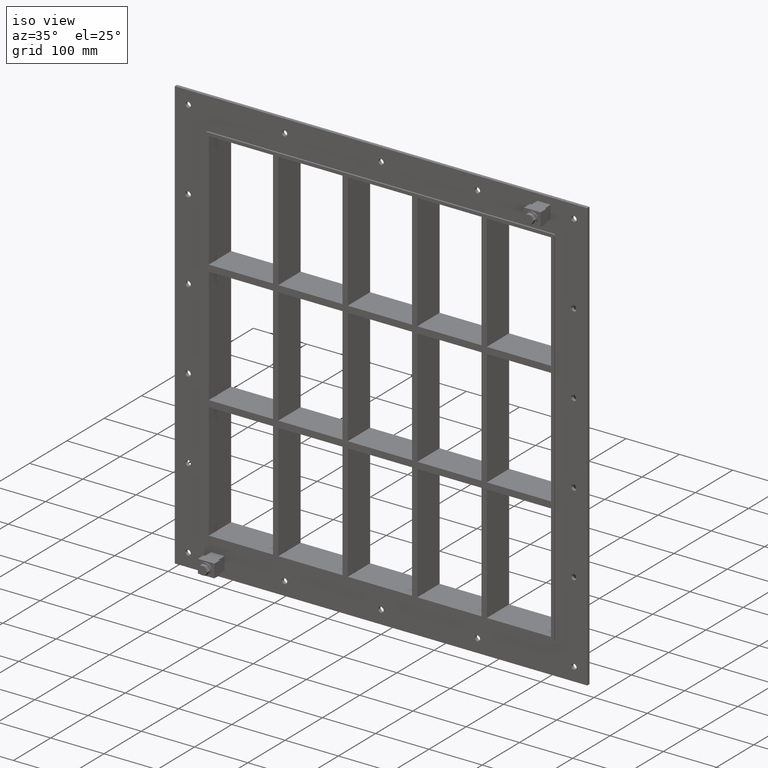
[diagram: clean part render]
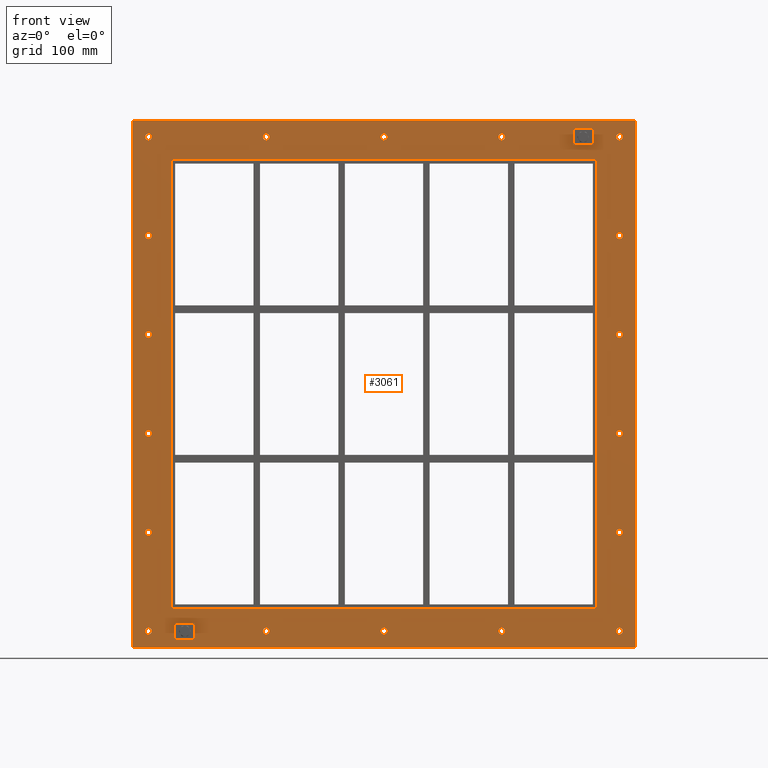
[diagram: tour spotlight — one face highlighted and labeled with its STEP entity id]
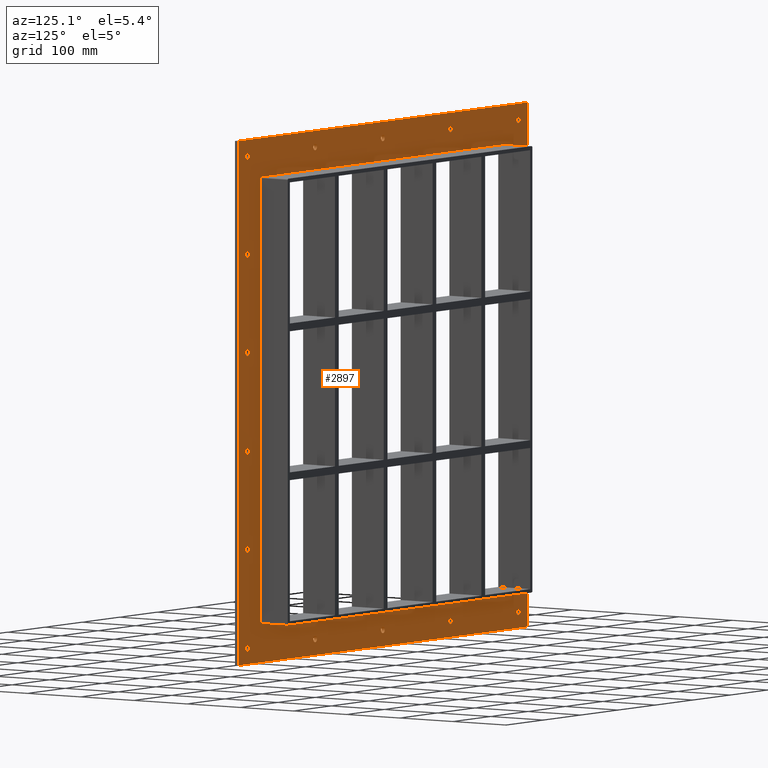
[diagram: tour spotlight — one face highlighted and labeled with its STEP entity id]
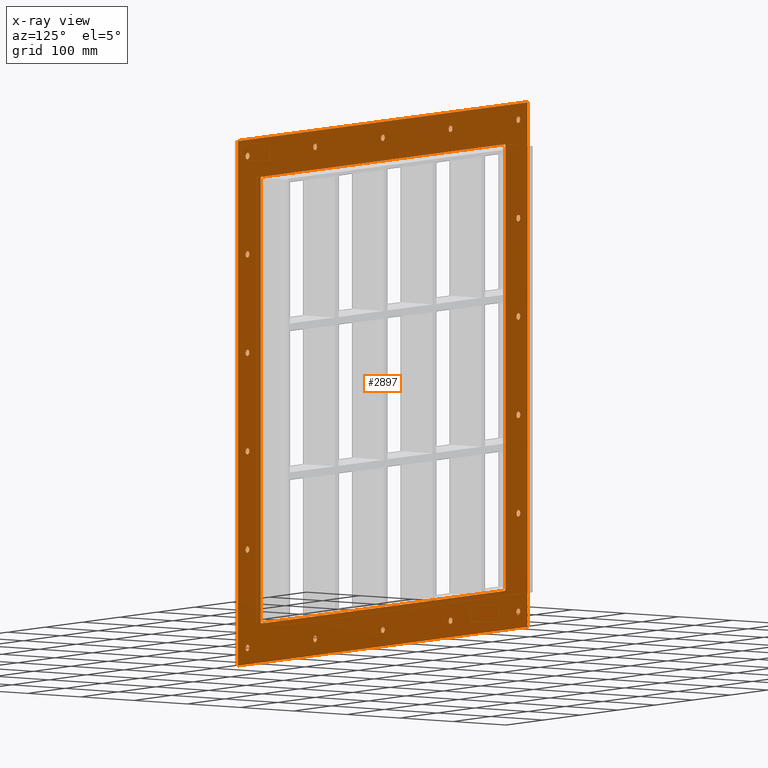
[diagram: x-ray of the same camera — body ghosted, this tour face saturated]
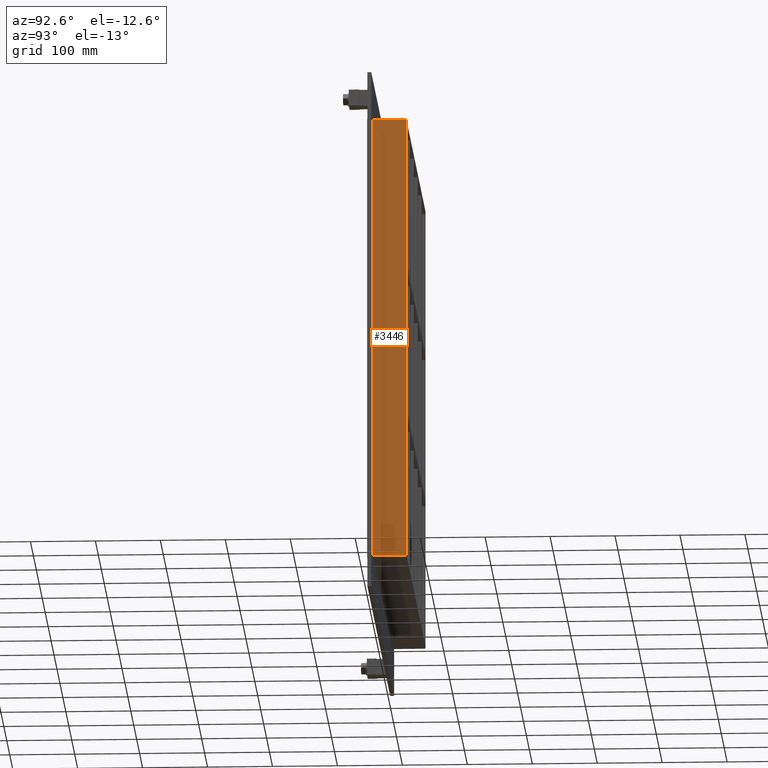
[diagram: tour spotlight — one face highlighted and labeled with its STEP entity id]
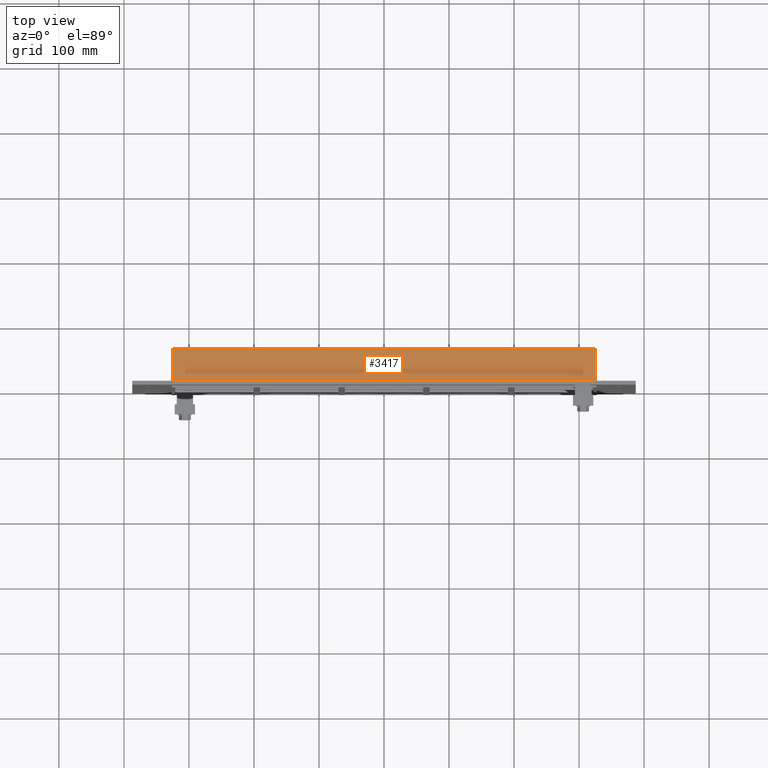
[diagram: tour spotlight — one face highlighted and labeled with its STEP entity id]
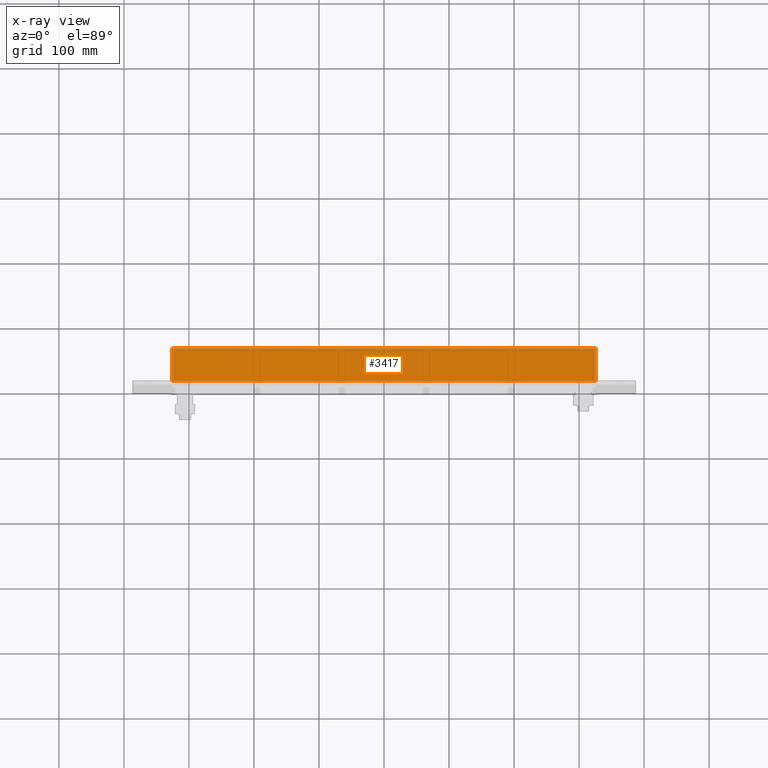
[diagram: x-ray of the same camera — body ghosted, this tour face saturated]
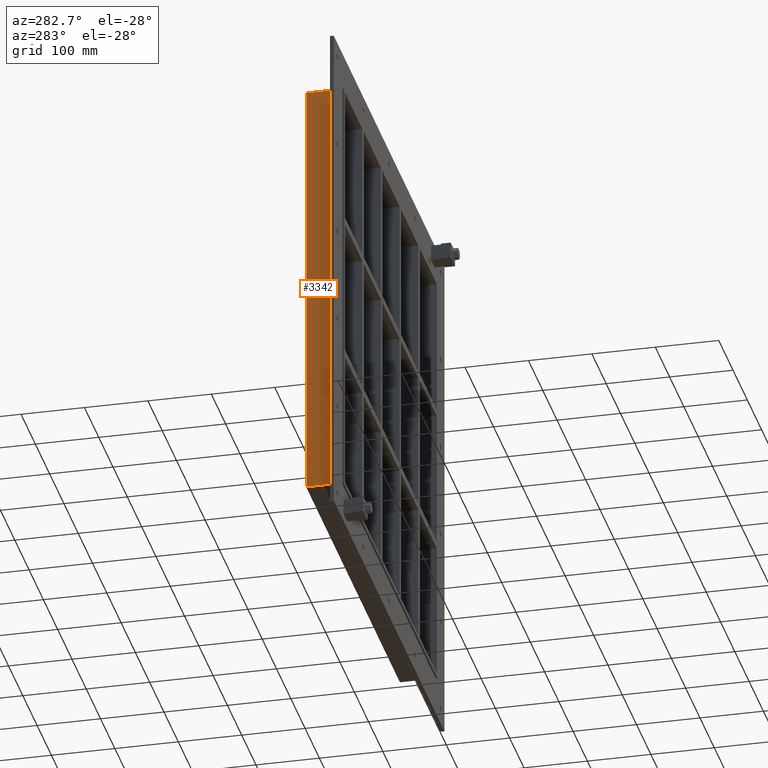
[diagram: tour spotlight — one face highlighted and labeled with its STEP entity id]
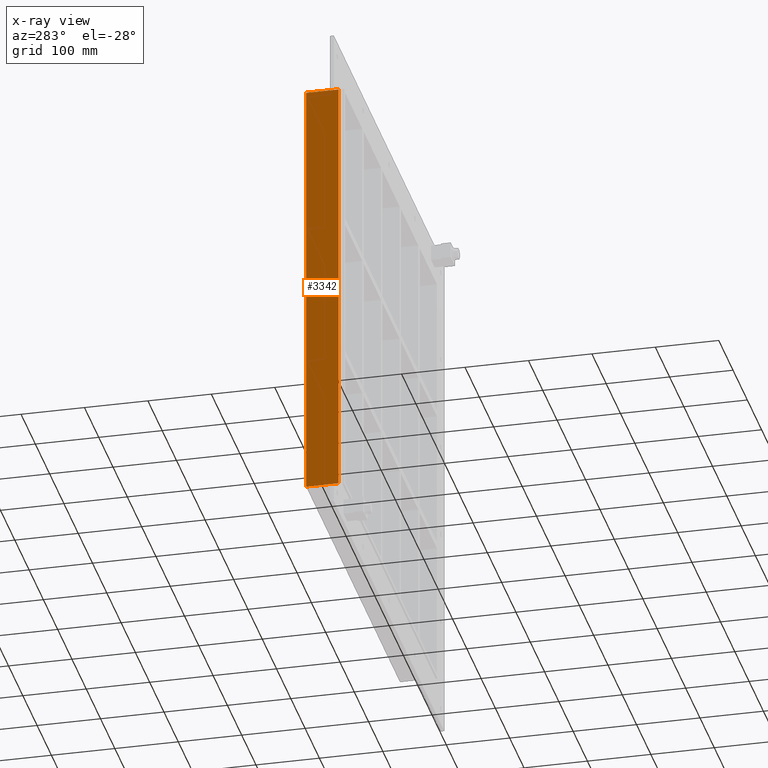
[diagram: x-ray of the same camera — body ghosted, this tour face saturated]
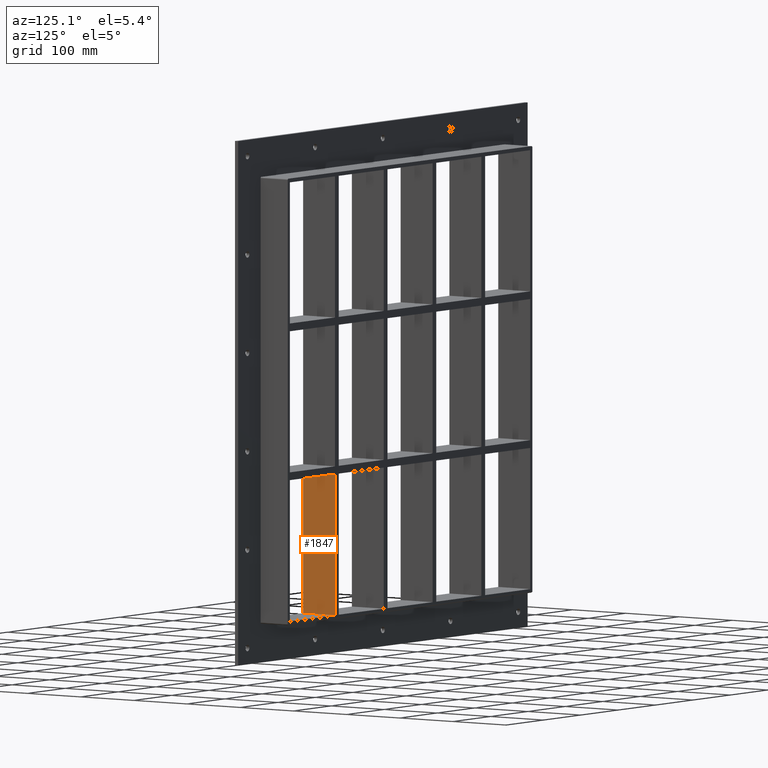
[diagram: tour spotlight — one face highlighted and labeled with its STEP entity id]
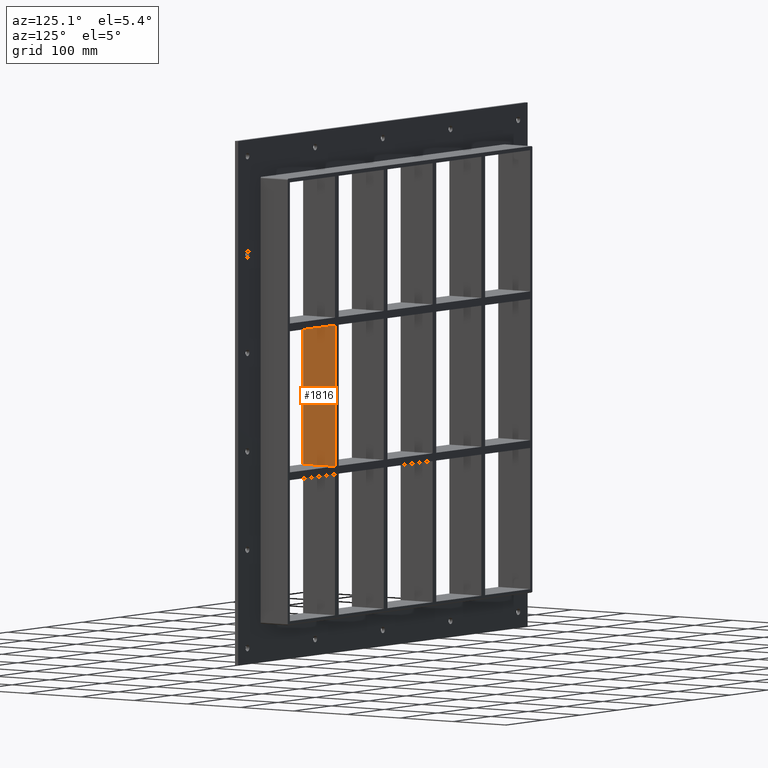
[diagram: tour spotlight — one face highlighted and labeled with its STEP entity id]
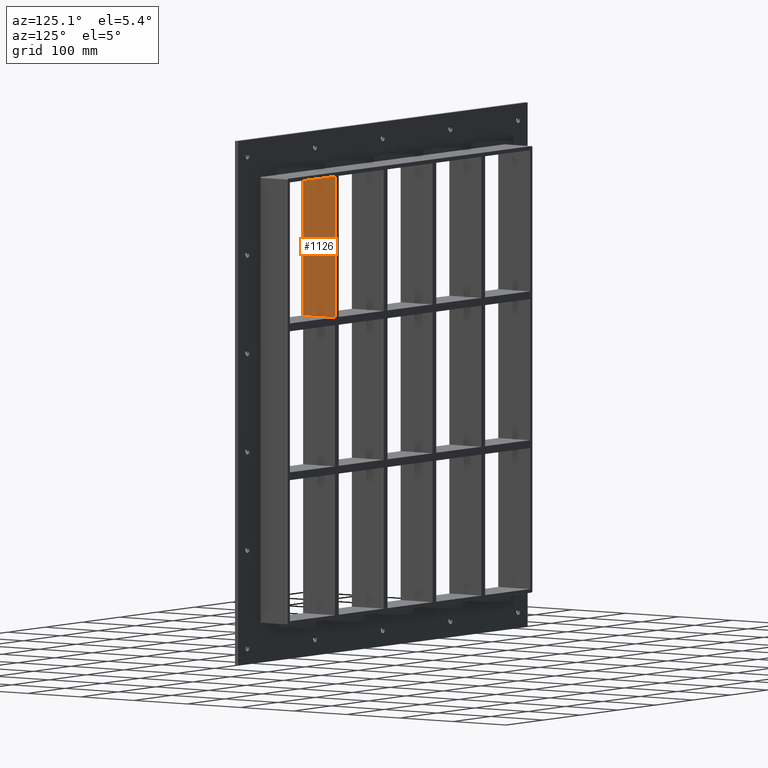
[diagram: tour spotlight — one face highlighted and labeled with its STEP entity id]
A machine part: a face-by-face anatomy tour. The part has 181 B-rep faces; the first image is the clean iso view, then the 8 largest visible faces are spotlighted one at a time (largest first), each with its STEP entity span.

Face 1 — front view, entity #3061. In plain terms, the highlighted planar face has unit normal (0, 1, 0).
Definition (entity closure, byte-faithful):
#84=CARTESIAN_POINT('',(-357.25000000000011,0.0,-380.00000000000011));
#85=VERTEX_POINT('',#84);
#86=CARTESIAN_POINT('',(-362.25000000000011,0.0,-380.00000000000011));
#87=DIRECTION('',(0.0,1.0,0.0));
#88=DIRECTION('',(1.0,0.0,0.0));
#89=AXIS2_PLACEMENT_3D('',#86,#87,#88);
#90=CIRCLE('',#89,5.0);
#91=EDGE_CURVE('',#85,#85,#90,.T.);
#112=CARTESIAN_POINT('',(367.14999999999986,0.0,-228.00000000000017));
#113=VERTEX_POINT('',#112);
#114=CARTESIAN_POINT('',(362.14999999999986,0.0,-228.00000000000017));
#115=DIRECTION('',(0.0,1.0,0.0));
#116=DIRECTION('',(1.0,0.0,0.0));
#117=AXIS2_PLACEMENT_3D('',#114,#115,#116);
#118=CIRCLE('',#117,5.0);
#119=EDGE_CURVE('',#113,#113,#118,.T.);
#140=CARTESIAN_POINT('',(-357.25000000000011,0.0,-228.00000000000017));
#141=VERTEX_POINT('',#140);
#142=CARTESIAN_POINT('',(-362.25000000000011,0.0,-228.00000000000017));
#143=DIRECTION('',(0.0,1.0,0.0));
#144=DIRECTION('',(1.0,0.0,0.0));
#145=AXIS2_PLACEMENT_3D('',#142,#143,#144);
#146=CIRCLE('',#145,5.0);
#147=EDGE_CURVE('',#141,#141,#146,.T.);
#168=CARTESIAN_POINT('',(367.14999999999986,0.0,-76.000000000000142));
#169=VERTEX_POINT('',#168);
#170=CARTESIAN_POINT('',(362.14999999999986,0.0,-76.000000000000142));
#171=DIRECTION('',(0.0,1.0,0.0));
#172=DIRECTION('',(1.0,0.0,0.0));
#173=AXIS2_PLACEMENT_3D('',#170,#171,#172);
#174=CIRCLE('',#173,5.0);
#175=EDGE_CURVE('',#169,#169,#174,.T.);
#196=CARTESIAN_POINT('',(-357.25000000000011,0.0,-76.000000000000142));
#197=VERTEX_POINT('',#196);
#198=CARTESIAN_POINT('',(-362.25000000000011,0.0,-76.000000000000142));
#199=DIRECTION('',(0.0,1.0,0.0));
#200=DIRECTION('',(1.0,0.0,0.0));
#201=AXIS2_PLACEMENT_3D('',#198,#199,#200);
#202=CIRCLE('',#201,5.0);
#203=EDGE_CURVE('',#197,#197,#202,.T.);
#224=CARTESIAN_POINT('',(367.14999999999986,0.0,75.999999999999815));
#225=VERTEX_POINT('',#224);
#226=CARTESIAN_POINT('',(362.14999999999986,0.0,75.999999999999815));
#227=DIRECTION('',(0.0,1.0,0.0));
#228=DIRECTION('',(1.0,0.0,0.0));
#229=AXIS2_PLACEMENT_3D('',#226,#227,#228);
#230=CIRCLE('',#229,5.0);
#231=EDGE_CURVE('',#225,#225,#230,.T.);
#252=CARTESIAN_POINT('',(-357.25000000000011,0.0,75.999999999999815));
#253=VERTEX_POINT('',#252);
#254=CARTESIAN_POINT('',(-362.25000000000011,0.0,75.999999999999815));
#255=DIRECTION('',(0.0,1.0,0.0));
#256=DIRECTION('',(1.0,0.0,0.0));
#257=AXIS2_PLACEMENT_3D('',#254,#255,#256);
#258=CIRCLE('',#257,5.0);
#259=EDGE_CURVE('',#253,#253,#258,.T.);
#280=CARTESIAN_POINT('',(367.14999999999986,0.0,227.99999999999983));
#281=VERTEX_POINT('',#280);
#282=CARTESIAN_POINT('',(362.14999999999986,0.0,227.99999999999983));
#283=DIRECTION('',(0.0,1.0,0.0));
#284=DIRECTION('',(1.0,0.0,0.0));
#285=AXIS2_PLACEMENT_3D('',#282,#283,#284);
#286=CIRCLE('',#285,5.0);
#287=EDGE_CURVE('',#281,#281,#286,.T.);
#308=CARTESIAN_POINT('',(-357.25000000000011,0.0,227.99999999999983));
#309=VERTEX_POINT('',#308);
#310=CARTESIAN_POINT('',(-362.25000000000011,0.0,227.99999999999983));
#311=DIRECTION('',(0.0,1.0,0.0));
#312=DIRECTION('',(1.0,0.0,0.0));
#313=AXIS2_PLACEMENT_3D('',#310,#311,#312);
#314=CIRCLE('',#313,5.0);
#315=EDGE_CURVE('',#309,#309,#314,.T.);
#336=CARTESIAN_POINT('',(-176.15000000000009,0.0,379.99999999999989));
#337=VERTEX_POINT('',#336);
#338=CARTESIAN_POINT('',(-181.15000000000009,0.0,379.99999999999989));
#339=DIRECTION('',(0.0,1.0,0.0));
#340=DIRECTION('',(1.0,0.0,0.0));
#341=AXIS2_PLACEMENT_3D('',#338,#339,#340);
#342=CIRCLE('',#341,5.0);
#343=EDGE_CURVE('',#337,#337,#342,.T.);
#364=CARTESIAN_POINT('',(-176.15000000000009,0.0,-380.00000000000011));
#365=VERTEX_POINT('',#364);
#366=CARTESIAN_POINT('',(-181.15000000000009,0.0,-380.00000000000011));
#367=DIRECTION('',(0.0,1.0,0.0));
#368=DIRECTION('',(1.0,0.0,0.0));
#369=AXIS2_PLACEMENT_3D('',#366,#367,#368);
#370=CIRCLE('',#369,5.0);
#371=EDGE_CURVE('',#365,#365,#370,.T.);
#392=CARTESIAN_POINT('',(4.949999999999903,0.0,379.99999999999989));
#393=VERTEX_POINT('',#392);
#394=CARTESIAN_POINT('',(-0.050000000000097,0.0,379.99999999999989));
#395=DIRECTION('',(0.0,1.0,0.0));
#396=DIRECTION('',(1.0,0.0,0.0));
#397=AXIS2_PLACEMENT_3D('',#394,#395,#396);
#398=CIRCLE('',#397,5.0);
#399=EDGE_CURVE('',#393,#393,#398,.T.);
#420=CARTESIAN_POINT('',(4.949999999999903,0.0,-380.00000000000011));
#421=VERTEX_POINT('',#420);
#422=CARTESIAN_POINT('',(-0.050000000000097,0.0,-380.00000000000011));
#423=DIRECTION('',(0.0,1.0,0.0));
#424=DIRECTION('',(1.0,0.0,0.0));
#425=AXIS2_PLACEMENT_3D('',#422,#423,#424);
#426=CIRCLE('',#425,5.0);
#427=EDGE_CURVE('',#421,#421,#426,.T.);
#448=CARTESIAN_POINT('',(186.0499999999999,0.0,379.99999999999989));
#449=VERTEX_POINT('',#448);
#450=CARTESIAN_POINT('',(181.0499999999999,0.0,379.99999999999989));
#451=DIRECTION('',(0.0,1.0,0.0));
#452=DIRECTION('',(1.0,0.0,0.0));
#453=AXIS2_PLACEMENT_3D('',#450,#451,#452);
#454=CIRCLE('',#453,5.0);
#455=EDGE_CURVE('',#449,#449,#454,.T.);
#476=CARTESIAN_POINT('',(186.0499999999999,0.0,-380.00000000000011));
#477=VERTEX_POINT('',#476);
#478=CARTESIAN_POINT('',(181.0499999999999,0.0,-380.00000000000011));
#479=DIRECTION('',(0.0,1.0,0.0));
#480=DIRECTION('',(1.0,0.0,0.0));
#481=AXIS2_PLACEMENT_3D('',#478,#479,#480);
#482=CIRCLE('',#481,5.0);
#483=EDGE_CURVE('',#477,#477,#482,.T.);
#504=CARTESIAN_POINT('',(367.14999999999986,0.0,-380.00000000000011));
#505=VERTEX_POINT('',#504);
#506=CARTESIAN_POINT('',(362.14999999999986,0.0,-380.00000000000011));
#507=DIRECTION('',(0.0,1.0,0.0));
#508=DIRECTION('',(1.0,0.0,0.0));
#509=AXIS2_PLACEMENT_3D('',#506,#507,#508);
#510=CIRCLE('',#509,5.0);
#511=EDGE_CURVE('',#505,#505,#510,.T.);
#532=CARTESIAN_POINT('',(-357.25000000000011,0.0,379.99999999999989));
#533=VERTEX_POINT('',#532);
#534=CARTESIAN_POINT('',(-362.25000000000011,0.0,379.99999999999989));
#535=DIRECTION('',(0.0,1.0,0.0));
#536=DIRECTION('',(1.0,0.0,0.0));
#537=AXIS2_PLACEMENT_3D('',#534,#535,#536);
#538=CIRCLE('',#537,5.0);
#539=EDGE_CURVE('',#533,#533,#538,.T.);
#560=CARTESIAN_POINT('',(367.14999999999986,0.0,379.99999999999989));
#561=VERTEX_POINT('',#560);
#562=CARTESIAN_POINT('',(362.14999999999986,0.0,379.99999999999989));
#563=DIRECTION('',(0.0,1.0,0.0));
#564=DIRECTION('',(1.0,0.0,0.0));
#565=AXIS2_PLACEMENT_3D('',#562,#563,#564);
#566=CIRCLE('',#565,5.0);
#567=EDGE_CURVE('',#561,#561,#566,.T.);
#2898=CARTESIAN_POINT('',(0.0,0.0,0.0));
#2899=DIRECTION('',(0.0,1.0,0.0));
#2900=DIRECTION('',(0.0,0.0,1.0));
#2901=AXIS2_PLACEMENT_3D('',#2898,#2899,#2900);
#2902=PLANE('',#2901);
#2903=CARTESIAN_POINT('',(-387.25,0.0,405.00000000000006));
#2904=VERTEX_POINT('',#2903);
#2905=CARTESIAN_POINT('',(387.25,0.0,405.00000000000006));
#2906=VERTEX_POINT('',#2905);
#2907=CARTESIAN_POINT('',(-387.25,0.0,405.00000000000006));
#2908=DIRECTION('',(1.0,0.0,0.0));
#2909=VECTOR('',#2908,774.5);
#2910=LINE('',#2907,#2909);
#2911=EDGE_CURVE('',#2904,#2906,#2910,.T.);
#2912=ORIENTED_EDGE('',*,*,#2911,.F.);
#2913=CARTESIAN_POINT('',(-387.25,0.0,-405.00000000000006));
#2914=VERTEX_POINT('',#2913);
#2915=CARTESIAN_POINT('',(-387.25,0.0,-405.00000000000006));
#2916=DIRECTION('',(0.0,0.0,1.0));
#2917=VECTOR('',#2916,810.00000000000011);
#2918=LINE('',#2915,#2917);
#2919=EDGE_CURVE('',#2914,#2904,#2918,.T.);
#2920=ORIENTED_EDGE('',*,*,#2919,.F.);
#2921=CARTESIAN_POINT('',(387.25,0.0,-405.00000000000006));
#2922=VERTEX_POINT('',#2921);
#2923=CARTESIAN_POINT('',(387.25,0.0,-405.00000000000006));
#2924=DIRECTION('',(-1.0,0.0,0.0));
#2925=VECTOR('',#2924,774.5);
#2926=LINE('',#2923,#2925);
#2927=EDGE_CURVE('',#2922,#2914,#2926,.T.);
#2928=ORIENTED_EDGE('',*,*,#2927,.F.);
#2929=CARTESIAN_POINT('',(387.25,0.0,405.00000000000006));
#2930=DIRECTION('',(0.0,0.0,-1.0));
#2931=VECTOR('',#2930,810.00000000000011);
#2932=LINE('',#2929,#2931);
#2933=EDGE_CURVE('',#2906,#2922,#2932,.T.);
#2934=ORIENTED_EDGE('',*,*,#2933,.F.);
#2935=EDGE_LOOP('',(#2912,#2920,#2928,#2934));
#2936=FACE_OUTER_BOUND('',#2935,.T.);
#2937=ORIENTED_EDGE('',*,*,#91,.T.);
#2938=EDGE_LOOP('',(#2937));
#2939=FACE_BOUND('',#2938,.T.);
#2940=ORIENTED_EDGE('',*,*,#119,.T.);
#2941=EDGE_LOOP('',(#2940));
#2942=FACE_BOUND('',#2941,.T.);
#2943=ORIENTED_EDGE('',*,*,#147,.T.);
#2944=EDGE_LOOP('',(#2943));
#2945=FACE_BOUND('',#2944,.T.);
#2946=ORIENTED_EDGE('',*,*,#175,.T.);
#2947=EDGE_LOOP('',(#2946));
#2948=FACE_BOUND('',#2947,.T.);
#2949=ORIENTED_EDGE('',*,*,#203,.T.);
#2950=EDGE_LOOP('',(#2949));
#2951=FACE_BOUND('',#2950,.T.);
#2952=ORIENTED_EDGE('',*,*,#231,.T.);
#2953=EDGE_LOOP('',(#2952));
#2954=FACE_BOUND('',#2953,.T.);
#2955=ORIENTED_EDGE('',*,*,#259,.T.);
#2956=EDGE_LOOP('',(#2955));
#2957=FACE_BOUND('',#2956,.T.);
#2958=ORIENTED_EDGE('',*,*,#287,.T.);
#2959=EDGE_LOOP('',(#2958));
#2960=FACE_BOUND('',#2959,.T.);
#2961=ORIENTED_EDGE('',*,*,#315,.T.);
#2962=EDGE_LOOP('',(#2961));
#2963=FACE_BOUND('',#2962,.T.);
#2964=ORIENTED_EDGE('',*,*,#343,.T.);
#2965=EDGE_LOOP('',(#2964));
#2966=FACE_BOUND('',#2965,.T.);
#2967=ORIENTED_EDGE('',*,*,#371,.T.);
#2968=EDGE_LOOP('',(#2967));
#2969=FACE_BOUND('',#2968,.T.);
#2970=ORIENTED_EDGE('',*,*,#399,.T.);
#2971=EDGE_LOOP('',(#2970));
#2972=FACE_BOUND('',#2971,.T.);
#2973=ORIENTED_EDGE('',*,*,#427,.T.);
#2974=EDGE_LOOP('',(#2973));
#2975=FACE_BOUND('',#2974,.T.);
#2976=ORIENTED_EDGE('',*,*,#455,.T.);
#2977=EDGE_LOOP('',(#2976));
#2978=FACE_BOUND('',#2977,.T.);
#2979=ORIENTED_EDGE('',*,*,#483,.T.);
#2980=EDGE_LOOP('',(#2979));
#2981=FACE_BOUND('',#2980,.T.);
#2982=ORIENTED_EDGE('',*,*,#511,.T.);
#2983=EDGE_LOOP('',(#2982));
#2984=FACE_BOUND('',#2983,.T.);
#2985=ORIENTED_EDGE('',*,*,#539,.T.);
#2986=EDGE_LOOP('',(#2985));
#2987=FACE_BOUND('',#2986,.T.);
#2988=ORIENTED_EDGE('',*,*,#567,.T.);
#2989=EDGE_LOOP('',(#2988));
#2990=FACE_BOUND('',#2989,.T.);
#2991=CARTESIAN_POINT('',(-325.25,0.0,345.00000000000011));
#2992=VERTEX_POINT('',#2991);
#2993=CARTESIAN_POINT('',(-327.25,0.0,343.00000000000011));
#2994=VERTEX_POINT('',#2993);
#2995=CARTESIAN_POINT('',(-325.25,0.0,343.00000000000011));
#2996=DIRECTION('',(0.0,-1.0,0.0));
#2997=DIRECTION('',(-0.707106781186548,0.0,0.707106781186548));
#2998=AXIS2_PLACEMENT_3D('',#2995,#2996,#2997);
#2999=CIRCLE('',#2998,2.0);
#3000=EDGE_CURVE('',#2992,#2994,#2999,.T.);
#3001=ORIENTED_EDGE('',*,*,#3000,.F.);
#3002=CARTESIAN_POINT('',(325.25,0.0,345.00000000000011));
#3003=VERTEX_POINT('',#3002);
#3004=CARTESIAN_POINT('',(325.25,0.0,345.00000000000011));
#3005=DIRECTION('',(-1.0,0.0,0.0));
#3006=VECTOR('',#3005,650.5);
#3007=LINE('',#3004,#3006);
#3008=EDGE_CURVE('',#3003,#2992,#3007,.T.);
#3009=ORIENTED_EDGE('',*,*,#3008,.F.);
#3010=CARTESIAN_POINT('',(327.25,0.0,343.00000000000011));
#3011=VERTEX_POINT('',#3010);
#3012=CARTESIAN_POINT('',(325.25,0.0,343.00000000000011));
#3013=DIRECTION('',(0.0,-1.0,0.0));
#3014=DIRECTION('',(0.707106781186548,0.0,0.707106781186548));
#3015=AXIS2_PLACEMENT_3D('',#3012,#3013,#3014);
#3016=CIRCLE('',#3015,2.0);
#3017=EDGE_CURVE('',#3011,#3003,#3016,.T.);
#3018=ORIENTED_EDGE('',*,*,#3017,.F.);
#3019=CARTESIAN_POINT('',(327.25,0.0,-343.0));
#3020=VERTEX_POINT('',#3019);
#3021=CARTESIAN_POINT('',(327.25,0.0,-342.99999999999994));
#3022=DIRECTION('',(0.0,0.0,1.0));
#3023=VECTOR('',#3022,686.0);
#3024=LINE('',#3021,#3023);
#3025=EDGE_CURVE('',#3020,#3011,#3024,.T.);
#3026=ORIENTED_EDGE('',*,*,#3025,.F.);
#3027=CARTESIAN_POINT('',(325.25,0.0,-345.0));
#3028=VERTEX_POINT('',#3027);
#3029=CARTESIAN_POINT('',(325.25,0.0,-343.0));
#3030=DIRECTION('',(0.0,-1.0,0.0));
#3031=DIRECTION('',(0.707106781186548,0.0,-0.707106781186548));
#3032=AXIS2_PLACEMENT_3D('',#3029,#3030,#3031);
#3033=CIRCLE('',#3032,2.0);
#3034=EDGE_CURVE('',#3028,#3020,#3033,.T.);
#3035=ORIENTED_EDGE('',*,*,#3034,.F.);
#3036=CARTESIAN_POINT('',(-325.25,0.0,-345.0));
#3037=VERTEX_POINT('',#3036);
#3038=CARTESIAN_POINT('',(-325.25,0.0,-345.0));
#3039=DIRECTION('',(1.0,0.0,0.0));
#3040=VECTOR('',#3039,650.5);
#3041=LINE('',#3038,#3040);
#3042=EDGE_CURVE('',#3037,#3028,#3041,.T.);
#3043=ORIENTED_EDGE('',*,*,#3042,.F.);
#3044=CARTESIAN_POINT('',(-327.25,0.0,-343.0));
#3045=VERTEX_POINT('',#3044);
#3046=CARTESIAN_POINT('',(-325.25,0.0,-343.0));
#3047=DIRECTION('',(0.0,-1.0,0.0));
#3048=DIRECTION('',(-0.707106781186548,0.0,-0.707106781186548));
#3049=AXIS2_PLACEMENT_3D('',#3046,#3047,#3048);
#3050=CIRCLE('',#3049,2.0);
#3051=EDGE_CURVE('',#3045,#3037,#3050,.T.);
#3052=ORIENTED_EDGE('',*,*,#3051,.F.);
#3053=CARTESIAN_POINT('',(-327.25,0.0,343.00000000000011));
#3054=DIRECTION('',(0.0,0.0,-1.0));
#3055=VECTOR('',#3054,686.00000000000011);
#3056=LINE('',#3053,#3055);
#3057=EDGE_CURVE('',#2994,#3045,#3056,.T.);
#3058=ORIENTED_EDGE('',*,*,#3057,.F.);
#3059=EDGE_LOOP('',(#3001,#3009,#3018,#3026,#3035,#3043,#3052,#3058));
#3060=FACE_BOUND('',#3059,.T.);
#3061=ADVANCED_FACE('',(#2936,#2939,#2942,#2945,#2948,#2951,#2954,#2957,#2960,#2963,#2966,#2969,#2972,#2975,#2978,#2981,#2984,#2987,#2990,#3060),#2902,.F.);

Face 2 — auxiliary view, entity #2897. An x-ray twin of the same camera follows (body ghosted, this face saturated) — the face is partly hidden behind the body. In plain terms, the highlighted planar face has unit normal (0, 1, 0).
Definition (entity closure, byte-faithful):
#73=CARTESIAN_POINT('',(-367.25000000000011,5.999999999999943,-380.00000000000011));
#74=VERTEX_POINT('',#73);
#75=CARTESIAN_POINT('',(-362.25000000000011,5.999999999999943,-380.00000000000011));
#76=DIRECTION('',(0.0,-1.0,0.0));
#77=DIRECTION('',(1.0,0.0,0.0));
#78=AXIS2_PLACEMENT_3D('',#75,#76,#77);
#79=CIRCLE('',#78,5.0);
#80=EDGE_CURVE('',#74,#74,#79,.T.);
#101=CARTESIAN_POINT('',(357.14999999999986,5.999999999999943,-228.00000000000017));
#102=VERTEX_POINT('',#101);
#103=CARTESIAN_POINT('',(362.14999999999986,5.999999999999943,-228.00000000000017));
#104=DIRECTION('',(0.0,-1.0,0.0));
#105=DIRECTION('',(1.0,0.0,0.0));
#106=AXIS2_PLACEMENT_3D('',#103,#104,#105);
#107=CIRCLE('',#106,5.0);
#108=EDGE_CURVE('',#102,#102,#107,.T.);
#129=CARTESIAN_POINT('',(-367.25000000000011,5.999999999999943,-228.00000000000017));
#130=VERTEX_POINT('',#129);
#131=CARTESIAN_POINT('',(-362.25000000000011,5.999999999999943,-228.00000000000017));
#132=DIRECTION('',(0.0,-1.0,0.0));
#133=DIRECTION('',(1.0,0.0,0.0));
#134=AXIS2_PLACEMENT_3D('',#131,#132,#133);
#135=CIRCLE('',#134,5.0);
#136=EDGE_CURVE('',#130,#130,#135,.T.);
#157=CARTESIAN_POINT('',(357.14999999999986,5.999999999999943,-76.000000000000142));
#158=VERTEX_POINT('',#157);
#159=CARTESIAN_POINT('',(362.14999999999986,5.999999999999943,-76.000000000000142));
#160=DIRECTION('',(0.0,-1.0,0.0));
#161=DIRECTION('',(1.0,0.0,0.0));
#162=AXIS2_PLACEMENT_3D('',#159,#160,#161);
#163=CIRCLE('',#162,5.0);
#164=EDGE_CURVE('',#158,#158,#163,.T.);
#185=CARTESIAN_POINT('',(-367.25000000000011,5.999999999999943,-76.000000000000142));
#186=VERTEX_POINT('',#185);
#187=CARTESIAN_POINT('',(-362.25000000000011,5.999999999999943,-76.000000000000142));
#188=DIRECTION('',(0.0,-1.0,0.0));
#189=DIRECTION('',(1.0,0.0,0.0));
#190=AXIS2_PLACEMENT_3D('',#187,#188,#189);
#191=CIRCLE('',#190,5.0);
#192=EDGE_CURVE('',#186,#186,#191,.T.);
#213=CARTESIAN_POINT('',(357.14999999999986,5.999999999999943,75.999999999999815));
#214=VERTEX_POINT('',#213);
#215=CARTESIAN_POINT('',(362.14999999999986,5.999999999999943,75.999999999999815));
#216=DIRECTION('',(0.0,-1.0,0.0));
#217=DIRECTION('',(1.0,0.0,0.0));
#218=AXIS2_PLACEMENT_3D('',#215,#216,#217);
#219=CIRCLE('',#218,5.0);
#220=EDGE_CURVE('',#214,#214,#219,.T.);
#241=CARTESIAN_POINT('',(-367.25000000000011,5.999999999999943,75.999999999999815));
#242=VERTEX_POINT('',#241);
#243=CARTESIAN_POINT('',(-362.25000000000011,5.999999999999943,75.999999999999815));
#244=DIRECTION('',(0.0,-1.0,0.0));
#245=DIRECTION('',(1.0,0.0,0.0));
#246=AXIS2_PLACEMENT_3D('',#243,#244,#245);
#247=CIRCLE('',#246,5.0);
#248=EDGE_CURVE('',#242,#242,#247,.T.);
#269=CARTESIAN_POINT('',(357.14999999999986,5.999999999999943,227.99999999999983));
#270=VERTEX_POINT('',#269);
#271=CARTESIAN_POINT('',(362.14999999999986,5.999999999999943,227.99999999999983));
#272=DIRECTION('',(0.0,-1.0,0.0));
#273=DIRECTION('',(1.0,0.0,0.0));
#274=AXIS2_PLACEMENT_3D('',#271,#272,#273);
#275=CIRCLE('',#274,5.0);
#276=EDGE_CURVE('',#270,#270,#275,.T.);
#297=CARTESIAN_POINT('',(-367.25000000000011,5.999999999999943,227.99999999999983));
#298=VERTEX_POINT('',#297);
#299=CARTESIAN_POINT('',(-362.25000000000011,5.999999999999943,227.99999999999983));
#300=DIRECTION('',(0.0,-1.0,0.0));
#301=DIRECTION('',(1.0,0.0,0.0));
#302=AXIS2_PLACEMENT_3D('',#299,#300,#301);
#303=CIRCLE('',#302,5.0);
#304=EDGE_CURVE('',#298,#298,#303,.T.);
#325=CARTESIAN_POINT('',(-186.15000000000009,5.999999999999943,379.99999999999989));
#326=VERTEX_POINT('',#325);
#327=CARTESIAN_POINT('',(-181.15000000000009,5.999999999999943,379.99999999999989));
#328=DIRECTION('',(0.0,-1.0,0.0));
#329=DIRECTION('',(1.0,0.0,0.0));
#330=AXIS2_PLACEMENT_3D('',#327,#328,#329);
#331=CIRCLE('',#330,5.0);
#332=EDGE_CURVE('',#326,#326,#331,.T.);
#353=CARTESIAN_POINT('',(-186.15000000000009,5.999999999999943,-380.00000000000011));
#354=VERTEX_POINT('',#353);
#355=CARTESIAN_POINT('',(-181.15000000000009,5.999999999999943,-380.00000000000011));
#356=DIRECTION('',(0.0,-1.0,0.0));
#357=DIRECTION('',(1.0,0.0,0.0));
#358=AXIS2_PLACEMENT_3D('',#355,#356,#357);
#359=CIRCLE('',#358,5.0);
#360=EDGE_CURVE('',#354,#354,#359,.T.);
#381=CARTESIAN_POINT('',(-5.050000000000097,5.999999999999943,379.99999999999989));
#382=VERTEX_POINT('',#381);
#383=CARTESIAN_POINT('',(-0.050000000000097,5.999999999999943,379.99999999999989));
#384=DIRECTION('',(0.0,-1.0,0.0));
#385=DIRECTION('',(1.0,0.0,0.0));
#386=AXIS2_PLACEMENT_3D('',#383,#384,#385);
#387=CIRCLE('',#386,5.0);
#388=EDGE_CURVE('',#382,#382,#387,.T.);
#409=CARTESIAN_POINT('',(-5.050000000000097,5.999999999999943,-380.00000000000011));
#410=VERTEX_POINT('',#409);
#411=CARTESIAN_POINT('',(-0.050000000000097,5.999999999999943,-380.00000000000011));
#412=DIRECTION('',(0.0,-1.0,0.0));
#413=DIRECTION('',(1.0,0.0,0.0));
#414=AXIS2_PLACEMENT_3D('',#411,#412,#413);
#415=CIRCLE('',#414,5.0);
#416=EDGE_CURVE('',#410,#410,#415,.T.);
#437=CARTESIAN_POINT('',(176.0499999999999,5.999999999999943,379.99999999999989));
#438=VERTEX_POINT('',#437);
#439=CARTESIAN_POINT('',(181.0499999999999,5.999999999999943,379.99999999999989));
#440=DIRECTION('',(0.0,-1.0,0.0));
#441=DIRECTION('',(1.0,0.0,0.0));
#442=AXIS2_PLACEMENT_3D('',#439,#440,#441);
#443=CIRCLE('',#442,5.0);
#444=EDGE_CURVE('',#438,#438,#443,.T.);
#465=CARTESIAN_POINT('',(176.0499999999999,5.999999999999943,-380.00000000000011));
#466=VERTEX_POINT('',#465);
#467=CARTESIAN_POINT('',(181.0499999999999,5.999999999999943,-380.00000000000011));
#468=DIRECTION('',(0.0,-1.0,0.0));
#469=DIRECTION('',(1.0,0.0,0.0));
#470=AXIS2_PLACEMENT_3D('',#467,#468,#469);
#471=CIRCLE('',#470,5.0);
#472=EDGE_CURVE('',#466,#466,#471,.T.);
#493=CARTESIAN_POINT('',(357.14999999999986,5.999999999999943,-380.00000000000011));
#494=VERTEX_POINT('',#493);
#495=CARTESIAN_POINT('',(362.14999999999986,5.999999999999943,-380.00000000000011));
#496=DIRECTION('',(0.0,-1.0,0.0));
#497=DIRECTION('',(1.0,0.0,0.0));
#498=AXIS2_PLACEMENT_3D('',#495,#496,#497);
#499=CIRCLE('',#498,5.0);
#500=EDGE_CURVE('',#494,#494,#499,.T.);
#521=CARTESIAN_POINT('',(-367.25000000000011,5.999999999999943,379.99999999999989));
#522=VERTEX_POINT('',#521);
#523=CARTESIAN_POINT('',(-362.25000000000011,5.999999999999943,379.99999999999989));
#524=DIRECTION('',(0.0,-1.0,0.0));
#525=DIRECTION('',(1.0,0.0,0.0));
#526=AXIS2_PLACEMENT_3D('',#523,#524,#525);
#527=CIRCLE('',#526,5.0);
#528=EDGE_CURVE('',#522,#522,#527,.T.);
#549=CARTESIAN_POINT('',(357.14999999999986,5.999999999999943,379.99999999999989));
#550=VERTEX_POINT('',#549);
#551=CARTESIAN_POINT('',(362.14999999999986,5.999999999999943,379.99999999999989));
#552=DIRECTION('',(0.0,-1.0,0.0));
#553=DIRECTION('',(1.0,0.0,0.0));
#554=AXIS2_PLACEMENT_3D('',#551,#552,#553);
#555=CIRCLE('',#554,5.0);
#556=EDGE_CURVE('',#550,#550,#555,.T.);
#2734=CARTESIAN_POINT('',(0.0,6.000000000000001,0.0));
#2735=DIRECTION('',(0.0,1.0,0.0));
#2736=DIRECTION('',(0.0,0.0,1.0));
#2737=AXIS2_PLACEMENT_3D('',#2734,#2735,#2736);
#2738=PLANE('',#2737);
#2739=CARTESIAN_POINT('',(-387.25,6.000000000000001,405.00000000000006));
#2740=VERTEX_POINT('',#2739);
#2741=CARTESIAN_POINT('',(387.25,6.000000000000001,405.00000000000006));
#2742=VERTEX_POINT('',#2741);
#2743=CARTESIAN_POINT('',(-387.25,6.000000000000001,405.00000000000006));
#2744=DIRECTION('',(1.0,0.0,0.0));
#2745=VECTOR('',#2744,774.5);
#2746=LINE('',#2743,#2745);
#2747=EDGE_CURVE('',#2740,#2742,#2746,.T.);
#2748=ORIENTED_EDGE('',*,*,#2747,.T.);
#2749=CARTESIAN_POINT('',(387.25,6.000000000000001,-405.00000000000006));
#2750=VERTEX_POINT('',#2749);
#2751=CARTESIAN_POINT('',(387.25,6.000000000000001,405.00000000000006));
#2752=DIRECTION('',(0.0,0.0,-1.0));
#2753=VECTOR('',#2752,810.00000000000011);
#2754=LINE('',#2751,#2753);
#2755=EDGE_CURVE('',#2742,#2750,#2754,.T.);
#2756=ORIENTED_EDGE('',*,*,#2755,.T.);
#2757=CARTESIAN_POINT('',(-387.25,6.000000000000001,-405.00000000000006));
#2758=VERTEX_POINT('',#2757);
#2759=CARTESIAN_POINT('',(387.25,6.000000000000001,-405.00000000000006));
#2760=DIRECTION('',(-1.0,0.0,0.0));
#2761=VECTOR('',#2760,774.5);
#2762=LINE('',#2759,#2761);
#2763=EDGE_CURVE('',#2750,#2758,#2762,.T.);
#2764=ORIENTED_EDGE('',*,*,#2763,.T.);
#2765=CARTESIAN_POINT('',(-387.25,6.000000000000001,-405.00000000000006));
#2766=DIRECTION('',(0.0,0.0,1.0));
#2767=VECTOR('',#2766,810.00000000000011);
#2768=LINE('',#2765,#2767);
#2769=EDGE_CURVE('',#2758,#2740,#2768,.T.);
#2770=ORIENTED_EDGE('',*,*,#2769,.T.);
#2771=EDGE_LOOP('',(#2748,#2756,#2764,#2770));
#2772=FACE_OUTER_BOUND('',#2771,.T.);
#2773=ORIENTED_EDGE('',*,*,#80,.T.);
#2774=EDGE_LOOP('',(#2773));
#2775=FACE_BOUND('',#2774,.T.);
#2776=ORIENTED_EDGE('',*,*,#108,.T.);
#2777=EDGE_LOOP('',(#2776));
#2778=FACE_BOUND('',#2777,.T.);
#2779=ORIENTED_EDGE('',*,*,#136,.T.);
#2780=EDGE_LOOP('',(#2779));
#2781=FACE_BOUND('',#2780,.T.);
#2782=ORIENTED_EDGE('',*,*,#164,.T.);
#2783=EDGE_LOOP('',(#2782));
#2784=FACE_BOUND('',#2783,.T.);
#2785=ORIENTED_EDGE('',*,*,#192,.T.);
#2786=EDGE_LOOP('',(#2785));
#2787=FACE_BOUND('',#2786,.T.);
#2788=ORIENTED_EDGE('',*,*,#220,.T.);
#2789=EDGE_LOOP('',(#2788));
#2790=FACE_BOUND('',#2789,.T.);
#2791=ORIENTED_EDGE('',*,*,#248,.T.);
#2792=EDGE_LOOP('',(#2791));
#2793=FACE_BOUND('',#2792,.T.);
#2794=ORIENTED_EDGE('',*,*,#276,.T.);
#2795=EDGE_LOOP('',(#2794));
#2796=FACE_BOUND('',#2795,.T.);
#2797=ORIENTED_EDGE('',*,*,#304,.T.);
#2798=EDGE_LOOP('',(#2797));
#2799=FACE_BOUND('',#2798,.T.);
#2800=ORIENTED_EDGE('',*,*,#332,.T.);
#2801=EDGE_LOOP('',(#2800));
#2802=FACE_BOUND('',#2801,.T.);
#2803=ORIENTED_EDGE('',*,*,#360,.T.);
#2804=EDGE_LOOP('',(#2803));
#2805=FACE_BOUND('',#2804,.T.);
#2806=ORIENTED_EDGE('',*,*,#388,.T.);
#2807=EDGE_LOOP('',(#2806));
#2808=FACE_BOUND('',#2807,.T.);
#2809=ORIENTED_EDGE('',*,*,#416,.T.);
#2810=EDGE_LOOP('',(#2809));
#2811=FACE_BOUND('',#2810,.T.);
#2812=ORIENTED_EDGE('',*,*,#444,.T.);
#2813=EDGE_LOOP('',(#2812));
#2814=FACE_BOUND('',#2813,.T.);
#2815=ORIENTED_EDGE('',*,*,#472,.T.);
#2816=EDGE_LOOP('',(#2815));
#2817=FACE_BOUND('',#2816,.T.);
#2818=ORIENTED_EDGE('',*,*,#500,.T.);
#2819=EDGE_LOOP('',(#2818));
#2820=FACE_BOUND('',#2819,.T.);
#2821=ORIENTED_EDGE('',*,*,#528,.T.);
#2822=EDGE_LOOP('',(#2821));
#2823=FACE_BOUND('',#2822,.T.);
#2824=ORIENTED_EDGE('',*,*,#556,.T.);
#2825=EDGE_LOOP('',(#2824));
#2826=FACE_BOUND('',#2825,.T.);
#2827=CARTESIAN_POINT('',(-327.25,6.000000000000001,343.00000000000011));
#2828=VERTEX_POINT('',#2827);
#2829=CARTESIAN_POINT('',(-325.25,6.000000000000001,345.00000000000011));
#2830=VERTEX_POINT('',#2829);
#2831=CARTESIAN_POINT('',(-325.25,6.000000000000001,343.00000000000011));
#2832=DIRECTION('',(0.0,1.0,0.0));
#2833=DIRECTION('',(-0.707106781186548,0.0,0.707106781186548));
#2834=AXIS2_PLACEMENT_3D('',#2831,#2832,#2833);
#2835=CIRCLE('',#2834,2.0);
#2836=EDGE_CURVE('',#2828,#2830,#2835,.T.);
#2837=ORIENTED_EDGE('',*,*,#2836,.F.);
#2838=CARTESIAN_POINT('',(-327.25,6.000000000000001,-343.0));
#2839=VERTEX_POINT('',#2838);
#2840=CARTESIAN_POINT('',(-327.25,6.000000000000001,-343.0));
#2841=DIRECTION('',(0.0,0.0,1.0));
#2842=VECTOR('',#2841,686.00000000000011);
#2843=LINE('',#2840,#2842);
#2844=EDGE_CURVE('',#2839,#2828,#2843,.T.);
#2845=ORIENTED_EDGE('',*,*,#2844,.F.);
#2846=CARTESIAN_POINT('',(-325.25,6.000000000000001,-345.0));
#2847=VERTEX_POINT('',#2846);
#2848=CARTESIAN_POINT('',(-325.25,6.000000000000001,-343.0));
#2849=DIRECTION('',(0.0,1.0,0.0));
#2850=DIRECTION('',(-0.707106781186548,0.0,-0.707106781186548));
#2851=AXIS2_PLACEMENT_3D('',#2848,#2849,#2850);
#2852=CIRCLE('',#2851,2.0);
#2853=EDGE_CURVE('',#2847,#2839,#2852,.T.);
#2854=ORIENTED_EDGE('',*,*,#2853,.F.);
#2855=CARTESIAN_POINT('',(325.25,6.000000000000001,-345.0));
#2856=VERTEX_POINT('',#2855);
#2857=CARTESIAN_POINT('',(325.25,6.000000000000001,-345.0));
#2858=DIRECTION('',(-1.0,0.0,0.0));
#2859=VECTOR('',#2858,650.5);
#2860=LINE('',#2857,#2859);
#2861=EDGE_CURVE('',#2856,#2847,#2860,.T.);
#2862=ORIENTED_EDGE('',*,*,#2861,.F.);
#2863=CARTESIAN_POINT('',(327.25,6.000000000000001,-343.0));
#2864=VERTEX_POINT('',#2863);
#2865=CARTESIAN_POINT('',(325.25,6.000000000000001,-343.0));
#2866=DIRECTION('',(0.0,1.0,0.0));
#2867=DIRECTION('',(0.707106781186548,0.0,-0.707106781186548));
#2868=AXIS2_PLACEMENT_3D('',#2865,#2866,#2867);
#2869=CIRCLE('',#2868,2.0);
#2870=EDGE_CURVE('',#2864,#2856,#2869,.T.);
#2871=ORIENTED_EDGE('',*,*,#2870,.F.);
#2872=CARTESIAN_POINT('',(327.25,6.000000000000001,343.00000000000011));
#2873=VERTEX_POINT('',#2872);
#2874=CARTESIAN_POINT('',(327.25,6.000000000000001,343.00000000000011));
#2875=DIRECTION('',(0.0,0.0,-1.0));
#2876=VECTOR('',#2875,686.0);
#2877=LINE('',#2874,#2876);
#2878=EDGE_CURVE('',#2873,#2864,#2877,.T.);
#2879=ORIENTED_EDGE('',*,*,#2878,.F.);
#2880=CARTESIAN_POINT('',(325.25,6.000000000000001,345.00000000000011));
#2881=VERTEX_POINT('',#2880);
#2882=CARTESIAN_POINT('',(325.25,6.000000000000001,343.00000000000011));
#2883=DIRECTION('',(0.0,1.0,0.0));
#2884=DIRECTION('',(0.707106781186548,0.0,0.707106781186548));
#2885=AXIS2_PLACEMENT_3D('',#2882,#2883,#2884);
#2886=CIRCLE('',#2885,2.0);
#2887=EDGE_CURVE('',#2881,#2873,#2886,.T.);
#2888=ORIENTED_EDGE('',*,*,#2887,.F.);
#2889=CARTESIAN_POINT('',(-325.25,6.000000000000001,345.00000000000011));
#2890=DIRECTION('',(1.0,0.0,0.0));
#2891=VECTOR('',#2890,650.5);
#2892=LINE('',#2889,#2891);
#2893=EDGE_CURVE('',#2830,#2881,#2892,.T.);
#2894=ORIENTED_EDGE('',*,*,#2893,.F.);
#2895=EDGE_LOOP('',(#2837,#2845,#2854,#2862,#2871,#2879,#2888,#2894));
#2896=FACE_BOUND('',#2895,.T.);
#2897=ADVANCED_FACE('',(#2772,#2775,#2778,#2781,#2784,#2787,#2790,#2793,#2796,#2799,#2802,#2805,#2808,#2811,#2814,#2817,#2820,#2823,#2826,#2896),#2738,.T.);

Face 3 — auxiliary view, entity #3446. In plain terms, the highlighted planar face has unit normal (1, 0, 0).
Definition (entity closure, byte-faithful):
#1351=CARTESIAN_POINT('',(327.25,57.0,-343.0));
#1352=VERTEX_POINT('',#1351);
#1384=CARTESIAN_POINT('',(327.25,57.0,343.00000000000011));
#1385=VERTEX_POINT('',#1384);
#1393=CARTESIAN_POINT('',(327.25,57.0,343.00000000000011));
#1394=DIRECTION('',(0.0,0.0,-1.0));
#1395=VECTOR('',#1394,686.00000000000011);
#1396=LINE('',#1393,#1395);
#1397=EDGE_CURVE('',#1385,#1352,#1396,.T.);
#2863=CARTESIAN_POINT('',(327.25,6.000000000000001,-343.0));
#2864=VERTEX_POINT('',#2863);
#2872=CARTESIAN_POINT('',(327.25,6.000000000000001,343.00000000000011));
#2873=VERTEX_POINT('',#2872);
#2874=CARTESIAN_POINT('',(327.25,6.000000000000001,343.00000000000011));
#2875=DIRECTION('',(0.0,0.0,-1.0));
#2876=VECTOR('',#2875,686.0);
#2877=LINE('',#2874,#2876);
#2878=EDGE_CURVE('',#2873,#2864,#2877,.T.);
#3226=CARTESIAN_POINT('',(327.25,57.0,-343.0));
#3227=DIRECTION('',(0.0,-1.0,0.0));
#3228=VECTOR('',#3227,51.0);
#3229=LINE('',#3226,#3228);
#3230=EDGE_CURVE('',#1352,#2864,#3229,.T.);
#3424=CARTESIAN_POINT('',(327.25,6.000000000000001,343.00000000000011));
#3425=DIRECTION('',(0.0,1.0,0.0));
#3426=VECTOR('',#3425,51.0);
#3427=LINE('',#3424,#3426);
#3428=EDGE_CURVE('',#2873,#1385,#3427,.T.);
#3435=CARTESIAN_POINT('',(327.25,0.0,345.00000000000011));
#3436=DIRECTION('',(1.0,0.0,0.0));
#3437=DIRECTION('',(0.0,0.0,-1.0));
#3438=AXIS2_PLACEMENT_3D('',#3435,#3436,#3437);
#3439=PLANE('',#3438);
#3440=ORIENTED_EDGE('',*,*,#2878,.T.);
#3441=ORIENTED_EDGE('',*,*,#3230,.F.);
#3442=ORIENTED_EDGE('',*,*,#1397,.F.);
#3443=ORIENTED_EDGE('',*,*,#3428,.F.);
#3444=EDGE_LOOP('',(#3440,#3441,#3442,#3443));
#3445=FACE_OUTER_BOUND('',#3444,.T.);
#3446=ADVANCED_FACE('',(#3445),#3439,.T.);

Face 4 — top view, entity #3417. An x-ray twin of the same camera follows (body ghosted, this face saturated) — the face is partly hidden behind the body. In plain terms, the highlighted planar face has unit normal (0, 0, 1).
Definition (entity closure, byte-faithful):
#1367=CARTESIAN_POINT('',(-325.25,57.0,345.00000000000011));
#1368=VERTEX_POINT('',#1367);
#1376=CARTESIAN_POINT('',(325.25,57.0,345.00000000000011));
#1377=VERTEX_POINT('',#1376);
#1378=CARTESIAN_POINT('',(-325.25,57.0,345.00000000000011));
#1379=DIRECTION('',(1.0,0.0,0.0));
#1380=VECTOR('',#1379,650.5);
#1381=LINE('',#1378,#1380);
#1382=EDGE_CURVE('',#1368,#1377,#1381,.T.);
#2829=CARTESIAN_POINT('',(-325.25,6.000000000000001,345.00000000000011));
#2830=VERTEX_POINT('',#2829);
#2880=CARTESIAN_POINT('',(325.25,6.000000000000001,345.00000000000011));
#2881=VERTEX_POINT('',#2880);
#2889=CARTESIAN_POINT('',(-325.25,6.000000000000001,345.00000000000011));
#2890=DIRECTION('',(1.0,0.0,0.0));
#2891=VECTOR('',#2890,650.5);
#2892=LINE('',#2889,#2891);
#2893=EDGE_CURVE('',#2830,#2881,#2892,.T.);
#3390=CARTESIAN_POINT('',(-325.25,6.000000000000001,345.00000000000011));
#3391=DIRECTION('',(0.0,1.0,0.0));
#3392=VECTOR('',#3391,51.0);
#3393=LINE('',#3390,#3392);
#3394=EDGE_CURVE('',#2830,#1368,#3393,.T.);
#3401=CARTESIAN_POINT('',(-327.25,0.0,345.00000000000011));
#3402=DIRECTION('',(0.0,0.0,1.0));
#3403=DIRECTION('',(1.0,0.0,0.0));
#3404=AXIS2_PLACEMENT_3D('',#3401,#3402,#3403);
#3405=PLANE('',#3404);
#3406=ORIENTED_EDGE('',*,*,#2893,.T.);
#3407=CARTESIAN_POINT('',(325.25,57.0,345.00000000000011));
#3408=DIRECTION('',(0.0,-1.0,0.0));
#3409=VECTOR('',#3408,51.0);
#3410=LINE('',#3407,#3409);
#3411=EDGE_CURVE('',#1377,#2881,#3410,.T.);
#3412=ORIENTED_EDGE('',*,*,#3411,.F.);
#3413=ORIENTED_EDGE('',*,*,#1382,.F.);
#3414=ORIENTED_EDGE('',*,*,#3394,.F.);
#3415=EDGE_LOOP('',(#3406,#3412,#3413,#3414));
#3416=FACE_OUTER_BOUND('',#3415,.T.);
#3417=ADVANCED_FACE('',(#3416),#3405,.T.);

Face 5 — auxiliary view, entity #3342. An x-ray twin of the same camera follows (body ghosted, this face saturated) — the face is partly hidden behind the body. In plain terms, the highlighted planar face has unit normal (-1, 0, 0).
Definition (entity closure, byte-faithful):
#1349=CARTESIAN_POINT('',(-327.25,57.0,-343.0));
#1350=VERTEX_POINT('',#1349);
#1359=CARTESIAN_POINT('',(-327.25,57.0,343.00000000000011));
#1360=VERTEX_POINT('',#1359);
#1361=CARTESIAN_POINT('',(-327.25,57.0,-343.0));
#1362=DIRECTION('',(0.0,0.0,1.0));
#1363=VECTOR('',#1362,686.00000000000011);
#1364=LINE('',#1361,#1363);
#1365=EDGE_CURVE('',#1350,#1360,#1364,.T.);
#2827=CARTESIAN_POINT('',(-327.25,6.000000000000001,343.00000000000011));
#2828=VERTEX_POINT('',#2827);
#2838=CARTESIAN_POINT('',(-327.25,6.000000000000001,-343.0));
#2839=VERTEX_POINT('',#2838);
#2840=CARTESIAN_POINT('',(-327.25,6.000000000000001,-343.0));
#2841=DIRECTION('',(0.0,0.0,1.0));
#2842=VECTOR('',#2841,686.00000000000011);
#2843=LINE('',#2840,#2842);
#2844=EDGE_CURVE('',#2839,#2828,#2843,.T.);
#3275=CARTESIAN_POINT('',(-327.25,6.000000000000001,-343.0));
#3276=DIRECTION('',(0.0,1.0,0.0));
#3277=VECTOR('',#3276,51.0);
#3278=LINE('',#3275,#3277);
#3279=EDGE_CURVE('',#2839,#1350,#3278,.T.);
#3326=CARTESIAN_POINT('',(-327.25,0.0,-345.0));
#3327=DIRECTION('',(-1.0,0.0,0.0));
#3328=DIRECTION('',(0.0,0.0,1.0));
#3329=AXIS2_PLACEMENT_3D('',#3326,#3327,#3328);
#3330=PLANE('',#3329);
#3331=ORIENTED_EDGE('',*,*,#2844,.T.);
#3332=CARTESIAN_POINT('',(-327.25,57.0,343.00000000000011));
#3333=DIRECTION('',(0.0,-1.0,0.0));
#3334=VECTOR('',#3333,51.0);
#3335=LINE('',#3332,#3334);
#3336=EDGE_CURVE('',#1360,#2828,#3335,.T.);
#3337=ORIENTED_EDGE('',*,*,#3336,.F.);
#3338=ORIENTED_EDGE('',*,*,#1365,.F.);
#3339=ORIENTED_EDGE('',*,*,#3279,.F.);
#3340=EDGE_LOOP('',(#3331,#3337,#3338,#3339));
#3341=FACE_OUTER_BOUND('',#3340,.T.);
#3342=ADVANCED_FACE('',(#3341),#3330,.T.);

Face 6 — auxiliary view, entity #1847. In plain terms, the highlighted planar face has unit normal (1, 0, 0).
Definition (entity closure, byte-faithful):
#1703=CARTESIAN_POINT('',(200.74999999999278,57.0,-338.99999999998187));
#1704=VERTEX_POINT('',#1703);
#1721=CARTESIAN_POINT('',(200.74999999999278,57.0,-121.0000000000111));
#1722=VERTEX_POINT('',#1721);
#1729=CARTESIAN_POINT('',(200.74999999999278,57.0,-121.00000000001108));
#1730=DIRECTION('',(0.0,0.0,-1.0));
#1731=VECTOR('',#1730,217.99999999997078);
#1732=LINE('',#1729,#1731);
#1733=EDGE_CURVE('',#1722,#1704,#1732,.T.);
#1817=CARTESIAN_POINT('',(200.74999999999278,-3.0,339.00000000000006));
#1818=DIRECTION('',(1.0,0.0,0.0));
#1819=DIRECTION('',(0.0,0.0,-1.0));
#1820=AXIS2_PLACEMENT_3D('',#1817,#1818,#1819);
#1821=PLANE('',#1820);
#1822=CARTESIAN_POINT('',(200.74999999999278,-3.0,-121.0000000000111));
#1823=VERTEX_POINT('',#1822);
#1824=CARTESIAN_POINT('',(200.74999999999278,-3.0,-121.0000000000111));
#1825=DIRECTION('',(0.0,1.0,0.0));
#1826=VECTOR('',#1825,60.0);
#1827=LINE('',#1824,#1826);
#1828=EDGE_CURVE('',#1823,#1722,#1827,.T.);
#1829=ORIENTED_EDGE('',*,*,#1828,.F.);
#1830=CARTESIAN_POINT('',(200.74999999999278,-3.0,-338.99999999998187));
#1831=VERTEX_POINT('',#1830);
#1832=CARTESIAN_POINT('',(200.74999999999278,-3.0,-121.00000000001108));
#1833=DIRECTION('',(0.0,0.0,-1.0));
#1834=VECTOR('',#1833,217.99999999997078);
#1835=LINE('',#1832,#1834);
#1836=EDGE_CURVE('',#1823,#1831,#1835,.T.);
#1837=ORIENTED_EDGE('',*,*,#1836,.T.);
#1838=CARTESIAN_POINT('',(200.74999999999278,57.000000000000007,-339.00000000000006));
#1839=DIRECTION('',(0.0,-1.0,0.0));
#1840=VECTOR('',#1839,60.000000000000007);
#1841=LINE('',#1838,#1840);
#1842=EDGE_CURVE('',#1704,#1831,#1841,.T.);
#1843=ORIENTED_EDGE('',*,*,#1842,.F.);
#1844=ORIENTED_EDGE('',*,*,#1733,.F.);
#1845=EDGE_LOOP('',(#1829,#1837,#1843,#1844));
#1846=FACE_OUTER_BOUND('',#1845,.T.);
#1847=ADVANCED_FACE('',(#1846),#1821,.T.);

Face 7 — auxiliary view, entity #1816. In plain terms, the highlighted planar face has unit normal (1, 0, 0).
Definition (entity closure, byte-faithful):
#697=CARTESIAN_POINT('',(200.74999999999278,57.0,108.9999999999889));
#698=VERTEX_POINT('',#697);
#699=CARTESIAN_POINT('',(200.74999999999278,-3.0,108.9999999999889));
#700=VERTEX_POINT('',#699);
#701=CARTESIAN_POINT('',(200.74999999999278,57.0,108.99999999998894));
#702=DIRECTION('',(0.0,-1.0,0.0));
#703=VECTOR('',#702,60.0);
#704=LINE('',#701,#703);
#705=EDGE_CURVE('',#698,#700,#704,.T.);
#1464=CARTESIAN_POINT('',(200.74999999999278,57.0,-108.99999999999977));
#1465=VERTEX_POINT('',#1464);
#1466=CARTESIAN_POINT('',(200.74999999999278,57.0,108.99999999998892));
#1467=DIRECTION('',(0.0,0.0,-1.0));
#1468=VECTOR('',#1467,217.99999999998869);
#1469=LINE('',#1466,#1468);
#1470=EDGE_CURVE('',#698,#1465,#1469,.T.);
#1793=CARTESIAN_POINT('',(200.74999999999278,-3.0,339.00000000000006));
#1794=DIRECTION('',(1.0,0.0,0.0));
#1795=DIRECTION('',(0.0,0.0,-1.0));
#1796=AXIS2_PLACEMENT_3D('',#1793,#1794,#1795);
#1797=PLANE('',#1796);
#1798=ORIENTED_EDGE('',*,*,#705,.T.);
#1799=CARTESIAN_POINT('',(200.74999999999278,-3.0,-108.99999999999977));
#1800=VERTEX_POINT('',#1799);
#1801=CARTESIAN_POINT('',(200.74999999999278,-3.0,108.99999999998892));
#1802=DIRECTION('',(0.0,0.0,-1.0));
#1803=VECTOR('',#1802,217.99999999998869);
#1804=LINE('',#1801,#1803);
#1805=EDGE_CURVE('',#700,#1800,#1804,.T.);
#1806=ORIENTED_EDGE('',*,*,#1805,.T.);
#1807=CARTESIAN_POINT('',(200.74999999999278,57.0,-108.99999999999977));
#1808=DIRECTION('',(0.0,-1.0,0.0));
#1809=VECTOR('',#1808,60.0);
#1810=LINE('',#1807,#1809);
#1811=EDGE_CURVE('',#1465,#1800,#1810,.T.);
#1812=ORIENTED_EDGE('',*,*,#1811,.F.);
#1813=ORIENTED_EDGE('',*,*,#1470,.F.);
#1814=EDGE_LOOP('',(#1798,#1806,#1812,#1813));
#1815=FACE_OUTER_BOUND('',#1814,.T.);
#1816=ADVANCED_FACE('',(#1815),#1797,.T.);

Face 8 — auxiliary view, entity #1126. In plain terms, the highlighted planar face has unit normal (1, 0, 0).
Definition (entity closure, byte-faithful):
#817=CARTESIAN_POINT('',(200.74999999999278,-3.0,121.00000000000023));
#818=VERTEX_POINT('',#817);
#819=CARTESIAN_POINT('',(200.74999999999278,57.0,121.00000000000023));
#820=VERTEX_POINT('',#819);
#821=CARTESIAN_POINT('',(200.74999999999278,-3.0,121.00000000000023));
#822=DIRECTION('',(0.0,1.0,0.0));
#823=VECTOR('',#822,60.0);
#824=LINE('',#821,#823);
#825=EDGE_CURVE('',#818,#820,#824,.T.);
#1096=CARTESIAN_POINT('',(200.74999999999278,-3.0,339.00000000000006));
#1097=DIRECTION('',(1.0,0.0,0.0));
#1098=DIRECTION('',(0.0,0.0,-1.0));
#1099=AXIS2_PLACEMENT_3D('',#1096,#1097,#1098);
#1100=PLANE('',#1099);
#1101=ORIENTED_EDGE('',*,*,#825,.T.);
#1102=CARTESIAN_POINT('',(200.74999999999278,57.0,339.00000000000006));
#1103=VERTEX_POINT('',#1102);
#1104=CARTESIAN_POINT('',(200.74999999999278,57.0,339.00000000000006));
#1105=DIRECTION('',(0.0,0.0,-1.0));
#1106=VECTOR('',#1105,217.99999999999983);
#1107=LINE('',#1104,#1106);
#1108=EDGE_CURVE('',#1103,#820,#1107,.T.);
#1109=ORIENTED_EDGE('',*,*,#1108,.F.);
#1110=CARTESIAN_POINT('',(200.74999999999278,-3.0,339.00000000000006));
#1111=VERTEX_POINT('',#1110);
#1112=CARTESIAN_POINT('',(200.74999999999278,-3.0,339.00000000000006));
#1113=DIRECTION('',(0.0,1.0,0.0));
#1114=VECTOR('',#1113,60.000000000000007);
#1115=LINE('',#1112,#1114);
#1116=EDGE_CURVE('',#1111,#1103,#1115,.T.);
#1117=ORIENTED_EDGE('',*,*,#1116,.F.);
#1118=CARTESIAN_POINT('',(200.74999999999278,-3.0,339.00000000000006));
#1119=DIRECTION('',(0.0,0.0,-1.0));
#1120=VECTOR('',#1119,217.99999999999983);
#1121=LINE('',#1118,#1120);
#1122=EDGE_CURVE('',#1111,#818,#1121,.T.);
#1123=ORIENTED_EDGE('',*,*,#1122,.T.);
#1124=EDGE_LOOP('',(#1101,#1109,#1117,#1123));
#1125=FACE_OUTER_BOUND('',#1124,.T.);
#1126=ADVANCED_FACE('',(#1125),#1100,.T.);